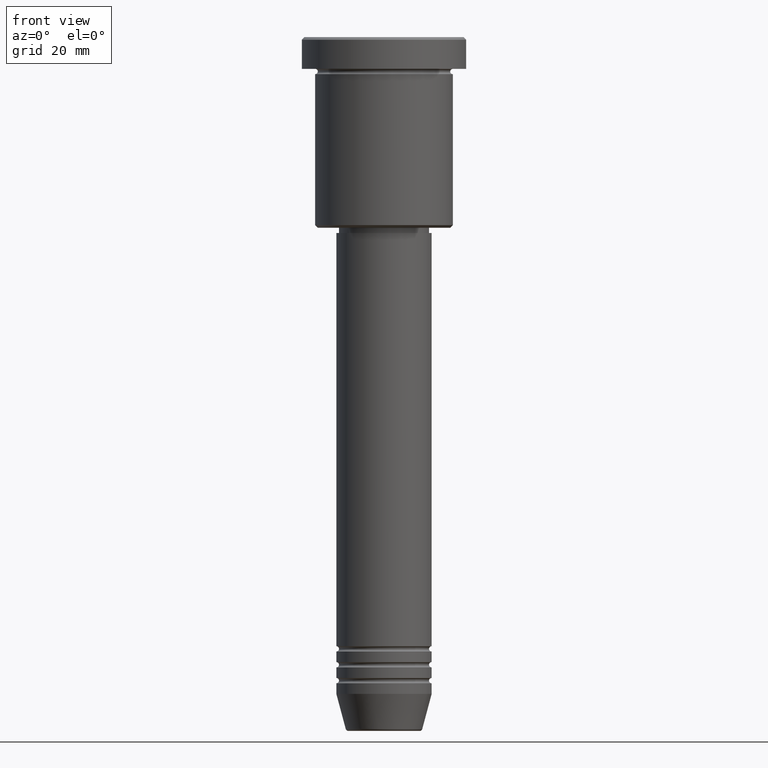
[diagram: clean part render]
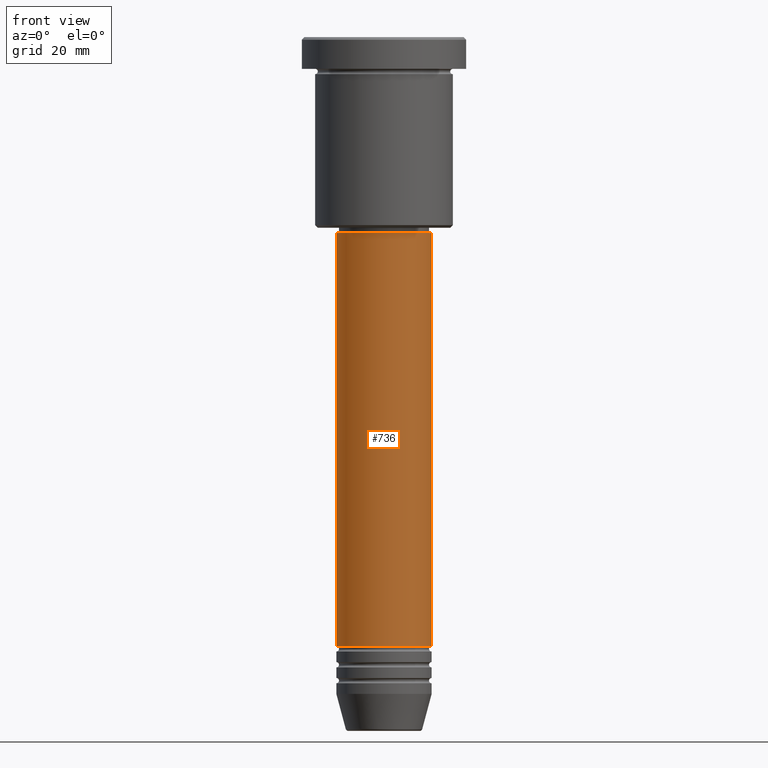
[diagram: same view with one face highlighted and labeled with its STEP entity id]
A machine part, front view. The second image highlights one B-rep face of the part: STEP entity #736.
In plain terms, the highlighted cylindrical surface (partial cylindrical patch) has radius 9 mm, axis along (-0, -0, 1).
Its self-contained STEP definition (entity closure, byte-faithful):
#7 = AXIS2_PLACEMENT_3D ( 'NONE', #126, #225, #684 ) ;
#29 = DIRECTION ( 'NONE',  ( 1.000000000000000000, 0.000000000000000000, 0.000000000000000000 ) ) ;
#57 = CARTESIAN_POINT ( 'NONE',  ( -9.000000000000000000, 1.102182119232617714E-15, -37.00000000000000000 ) ) ;
#58 = ORIENTED_EDGE ( 'NONE', *, *, #226, .T. ) ;
#74 = CARTESIAN_POINT ( 'NONE',  ( -9.000000000000000000, 1.102182119232617714E-15, -114.9999999999999574 ) ) ;
#102 = VECTOR ( 'NONE', #710, 1000.000000000000000 ) ;
#126 = CARTESIAN_POINT ( 'NONE',  ( 0.000000000000000000, 0.000000000000000000, -37.00000000000000000 ) ) ;
#128 = EDGE_CURVE ( 'NONE', #457, #884, #800, .T. ) ;
#129 = FACE_OUTER_BOUND ( 'NONE', #544, .T. ) ;
#225 = DIRECTION ( 'NONE',  ( -0.000000000000000000, -0.000000000000000000, 1.000000000000000000 ) ) ;
#226 = EDGE_CURVE ( 'NONE', #836, #721, #465, .T. ) ;
#311 = ORIENTED_EDGE ( 'NONE', *, *, #650, .T. ) ;
#350 = CARTESIAN_POINT ( 'NONE',  ( 9.000000000000000000, 0.000000000000000000, -114.9999999999999574 ) ) ;
#358 = VECTOR ( 'NONE', #926, 1000.000000000000000 ) ;
#409 = DIRECTION ( 'NONE',  ( 1.000000000000000000, 0.000000000000000000, 0.000000000000000000 ) ) ;
#457 = VERTEX_POINT ( 'NONE', #74 ) ;
#465 = LINE ( 'NONE', #1102, #358 ) ;
#489 = DIRECTION ( 'NONE',  ( -0.000000000000000000, -0.000000000000000000, 1.000000000000000000 ) ) ;
#493 = CYLINDRICAL_SURFACE ( 'NONE', #697, 9.000000000000000000 ) ;
#515 = ORIENTED_EDGE ( 'NONE', *, *, #128, .F. ) ;
#544 = EDGE_LOOP ( 'NONE', ( #515, #311, #58, #572 ) ) ;
#553 = AXIS2_PLACEMENT_3D ( 'NONE', #857, #853, #29 ) ;
#572 = ORIENTED_EDGE ( 'NONE', *, *, #1158, .F. ) ;
#650 = EDGE_CURVE ( 'NONE', #457, #836, #655, .T. ) ;
#655 = CIRCLE ( 'NONE', #553, 9.000000000000000000 ) ;
#684 = DIRECTION ( 'NONE',  ( 1.000000000000000000, 0.000000000000000000, 0.000000000000000000 ) ) ;
#697 = AXIS2_PLACEMENT_3D ( 'NONE', #1119, #489, #409 ) ;
#710 = DIRECTION ( 'NONE',  ( -0.000000000000000000, -0.000000000000000000, 1.000000000000000000 ) ) ;
#721 = VERTEX_POINT ( 'NONE', #939 ) ;
#736 = ADVANCED_FACE ( 'NONE', ( #129 ), #493, .T. ) ;
#800 = LINE ( 'NONE', #1163, #102 ) ;
#817 = CIRCLE ( 'NONE', #7, 9.000000000000000000 ) ;
#836 = VERTEX_POINT ( 'NONE', #350 ) ;
#853 = DIRECTION ( 'NONE',  ( -0.000000000000000000, -0.000000000000000000, 1.000000000000000000 ) ) ;
#857 = CARTESIAN_POINT ( 'NONE',  ( 0.000000000000000000, 0.000000000000000000, -114.9999999999999574 ) ) ;
#884 = VERTEX_POINT ( 'NONE', #57 ) ;
#926 = DIRECTION ( 'NONE',  ( -0.000000000000000000, -0.000000000000000000, 1.000000000000000000 ) ) ;
#939 = CARTESIAN_POINT ( 'NONE',  ( 9.000000000000000000, 0.000000000000000000, -37.00000000000000000 ) ) ;
#1102 = CARTESIAN_POINT ( 'NONE',  ( 9.000000000000000000, 0.000000000000000000, 0.000000000000000000 ) ) ;
#1119 = CARTESIAN_POINT ( 'NONE',  ( 0.000000000000000000, 0.000000000000000000, 0.000000000000000000 ) ) ;
#1158 = EDGE_CURVE ( 'NONE', #884, #721, #817, .T. ) ;
#1163 = CARTESIAN_POINT ( 'NONE',  ( -9.000000000000000000, 1.102182119232617714E-15, 0.000000000000000000 ) ) ;